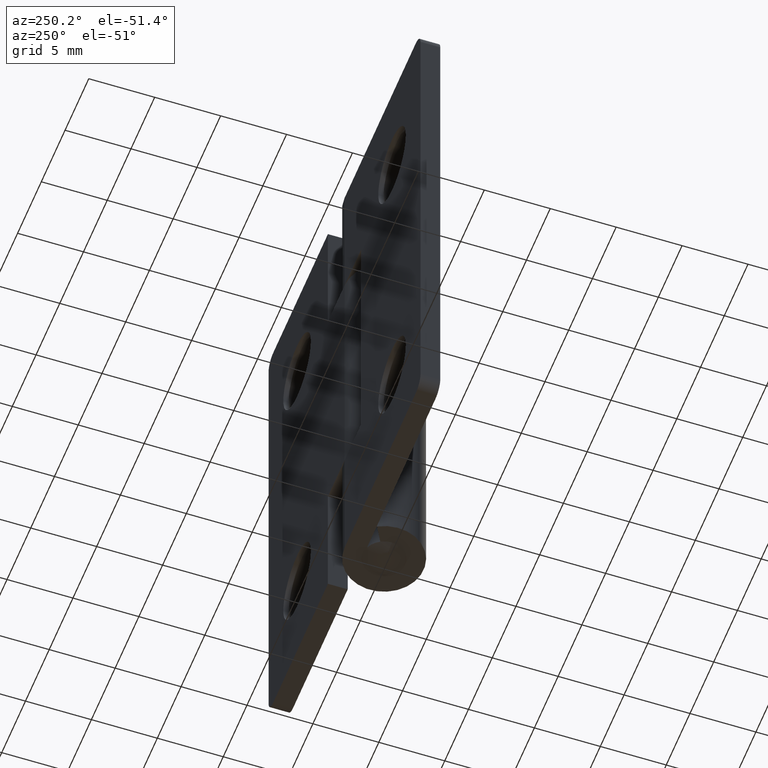
[diagram: clean part render]
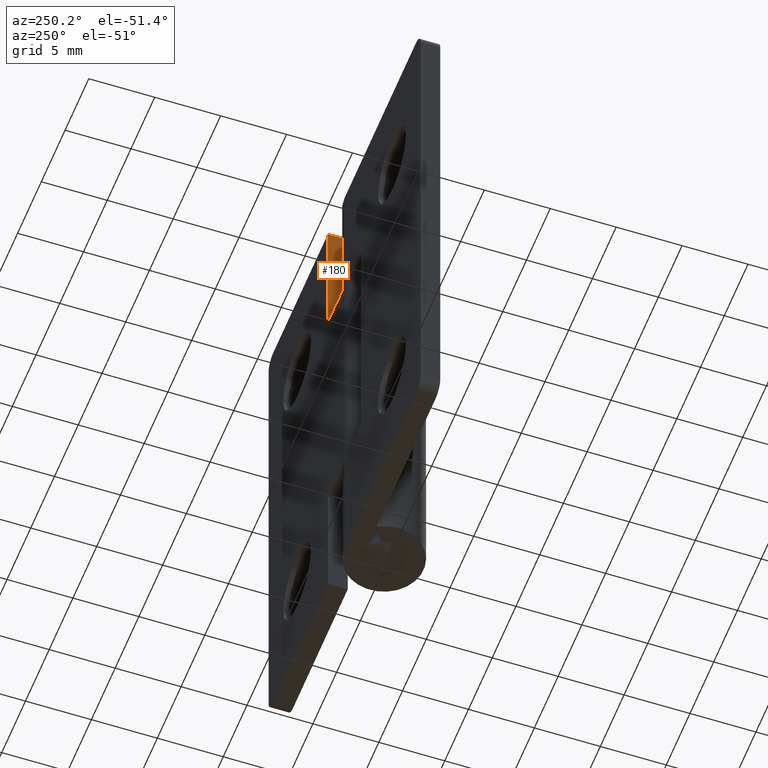
[diagram: same view with one face highlighted and labeled with its STEP entity id]
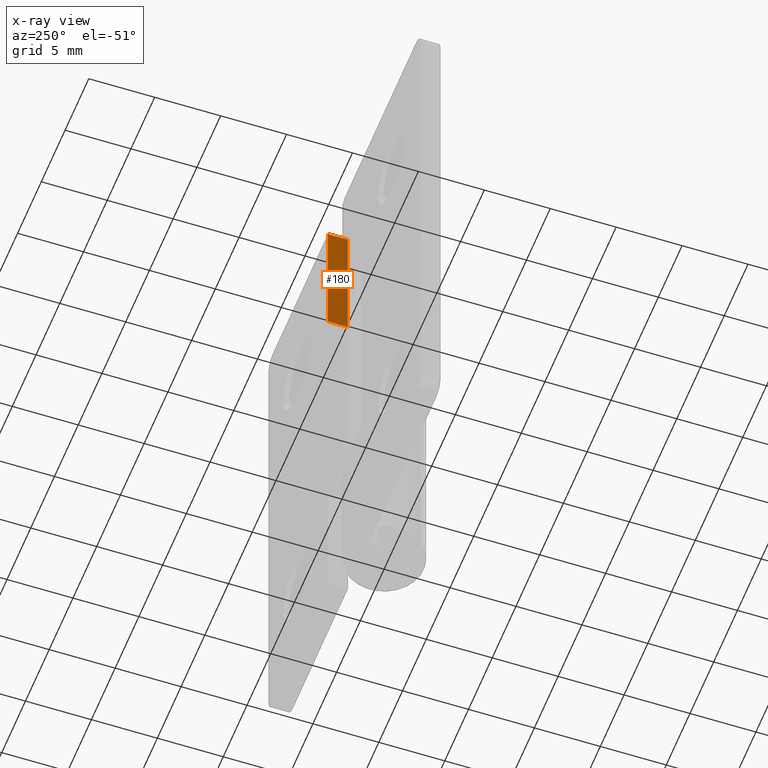
[diagram: x-ray of the same camera — body ghosted, the highlighted face saturated]
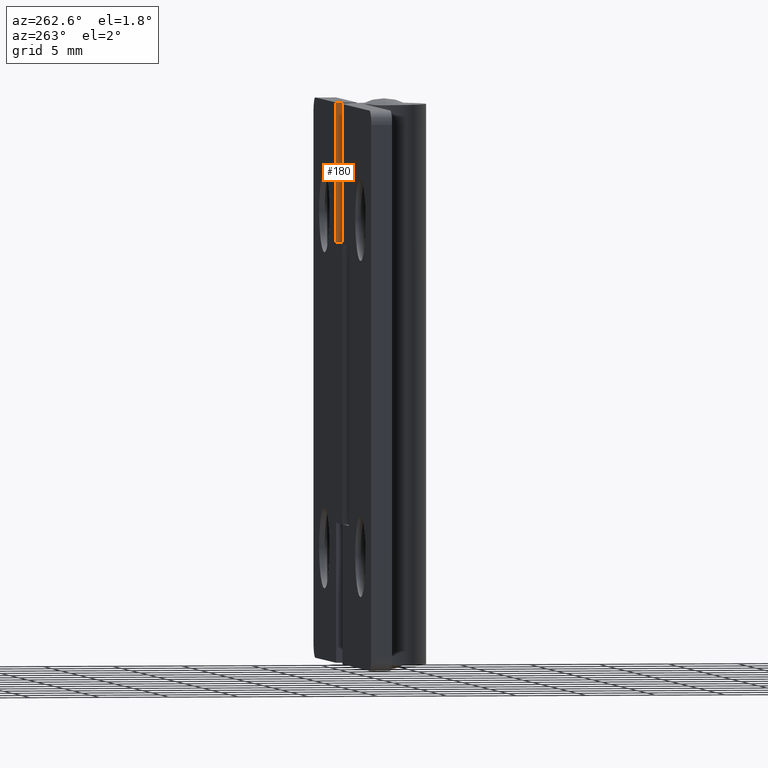
[diagram: same view with one face highlighted and labeled with its STEP entity id]
A machine part, auxiliary view. The second image highlights one B-rep face of the part: STEP entity #180.
The next image is the same camera in x-ray: the body ghosted, the highlighted face saturated — about 27% of this face is hidden behind the body in this view.
A second angle (auxiliary view) of the same face is appended — the face is thin or edge-on in the first view.
In plain terms, the highlighted planar face has unit normal (-1, 0, 0).
Its self-contained STEP definition (entity closure, byte-faithful):
#180=ADVANCED_FACE('',(#522),#521,.T.);
#521=PLANE('',#943);
#522=FACE_OUTER_BOUND('',#944,.T.);
#940=CARTESIAN_POINT('',(-6.50000000000E+00,-1.65000000000E+00,2.10000000000E+01));
#941=DIRECTION('',(-1.00000000000E+00,0.00000000000E+00,0.00000000000E+00));
#942=DIRECTION('',(0.00000000000E+00,0.00000000000E+00,1.00000000000E+00));
#943=AXIS2_PLACEMENT_3D('',#940,#941,#942);
#944=EDGE_LOOP('',(#1265,#1266,#1267,#1268));
#1265=ORIENTED_EDGE('',*,*,#1463,.T.);
#1266=ORIENTED_EDGE('',*,*,#1434,.F.);
#1267=ORIENTED_EDGE('',*,*,#1468,.F.);
#1268=ORIENTED_EDGE('',*,*,#1448,.F.);
#1434=EDGE_CURVE('',#1984,#1991,#1992,.T.);
#1448=EDGE_CURVE('',#2082,#2089,#2090,.T.);
#1463=EDGE_CURVE('',#2082,#1991,#2191,.T.);
#1468=EDGE_CURVE('',#2089,#1984,#2221,.T.);
#1984=VERTEX_POINT('',#2723);
#1991=VERTEX_POINT('',#2727);
#1992=LINE('',#2728,#2729);
#2082=VERTEX_POINT('',#2788);
#2089=VERTEX_POINT('',#2792);
#2090=LINE('',#2793,#2794);
#2191=LINE('',#2857,#2858);
#2221=LINE('',#2872,#2873);
#2723=CARTESIAN_POINT('',(-6.50000000000E+00,0.00000000000E+00,2.20000000000E+01));
#2727=CARTESIAN_POINT('',(-6.50000000000E+00,0.00000000000E+00,3.20000000000E+01));
#2728=CARTESIAN_POINT('',(-6.50000000000E+00,0.00000000000E+00,2.20000000000E+01));
#2729=VECTOR('',#2730,1.00000000000E+01);
#2730=DIRECTION('',(0.00000000000E+00,0.00000000000E+00,1.00000000000E+00));
#2788=CARTESIAN_POINT('',(-6.50000000000E+00,-1.50000000000E+00,3.20000000000E+01));
#2792=CARTESIAN_POINT('',(-6.50000000000E+00,-1.49999999999E+00,2.20000000000E+01));
#2793=CARTESIAN_POINT('',(-6.50000000000E+00,-1.50000000000E+00,3.20000000000E+01));
#2794=VECTOR('',#2795,1.00000000000E+01);
#2795=DIRECTION('',(0.00000000000E+00,0.00000000000E+00,-1.00000000000E+00));
#2857=CARTESIAN_POINT('',(-6.50000000000E+00,-1.50000000000E+00,3.20000000000E+01));
#2858=VECTOR('',#2859,1.50000000000E+00);
#2859=DIRECTION('',(0.00000000000E+00,1.00000000000E+00,0.00000000000E+00));
#2872=CARTESIAN_POINT('',(-6.50000000000E+00,-1.50000000000E+00,2.20000000000E+01));
#2873=VECTOR('',#2874,1.50000000000E+00);
#2874=DIRECTION('',(0.00000000000E+00,1.00000000000E+00,0.00000000000E+00));